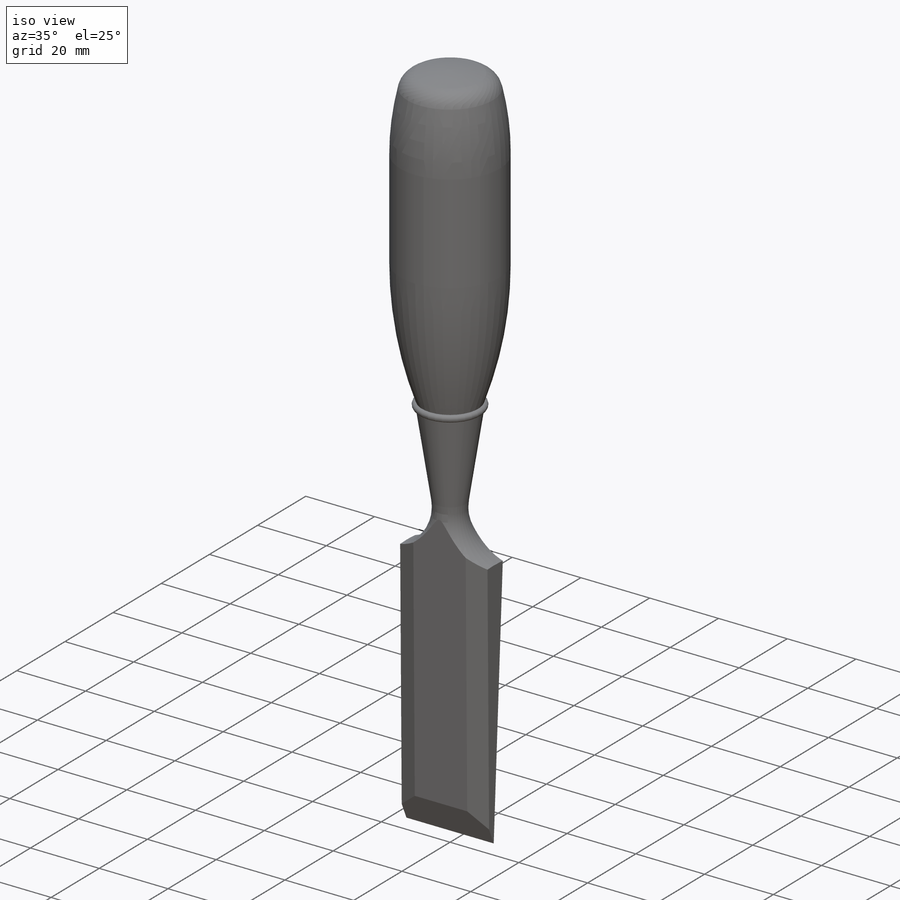
[diagram: iso view]
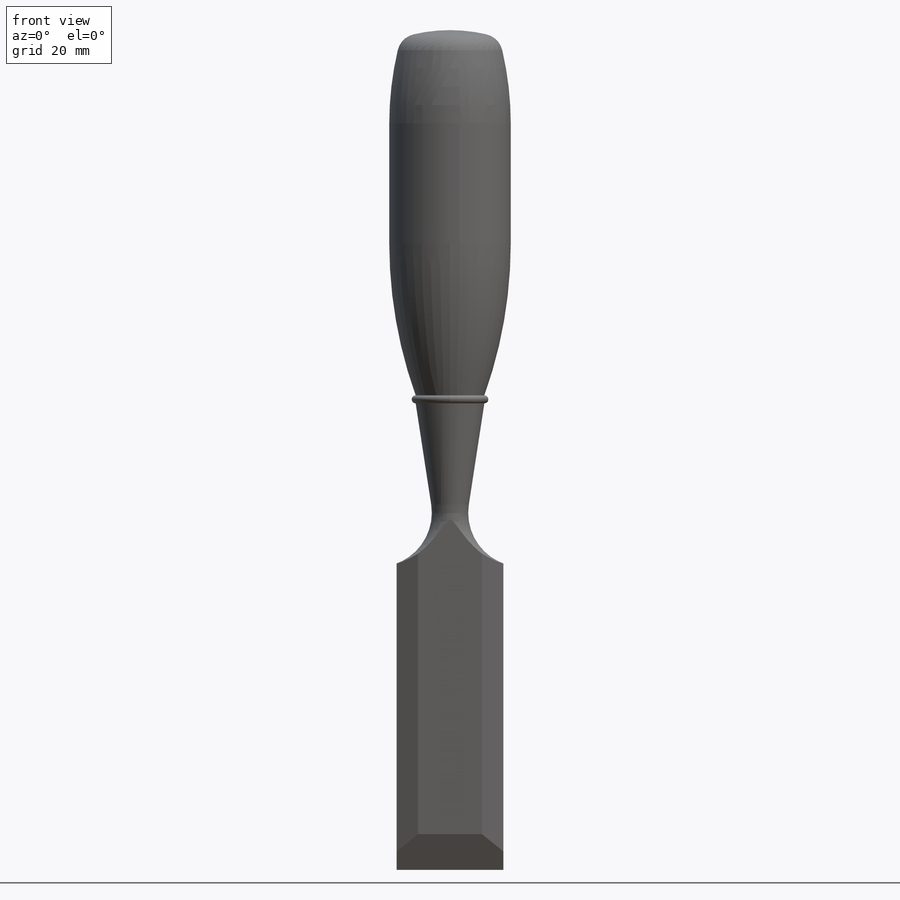
[diagram: front view]
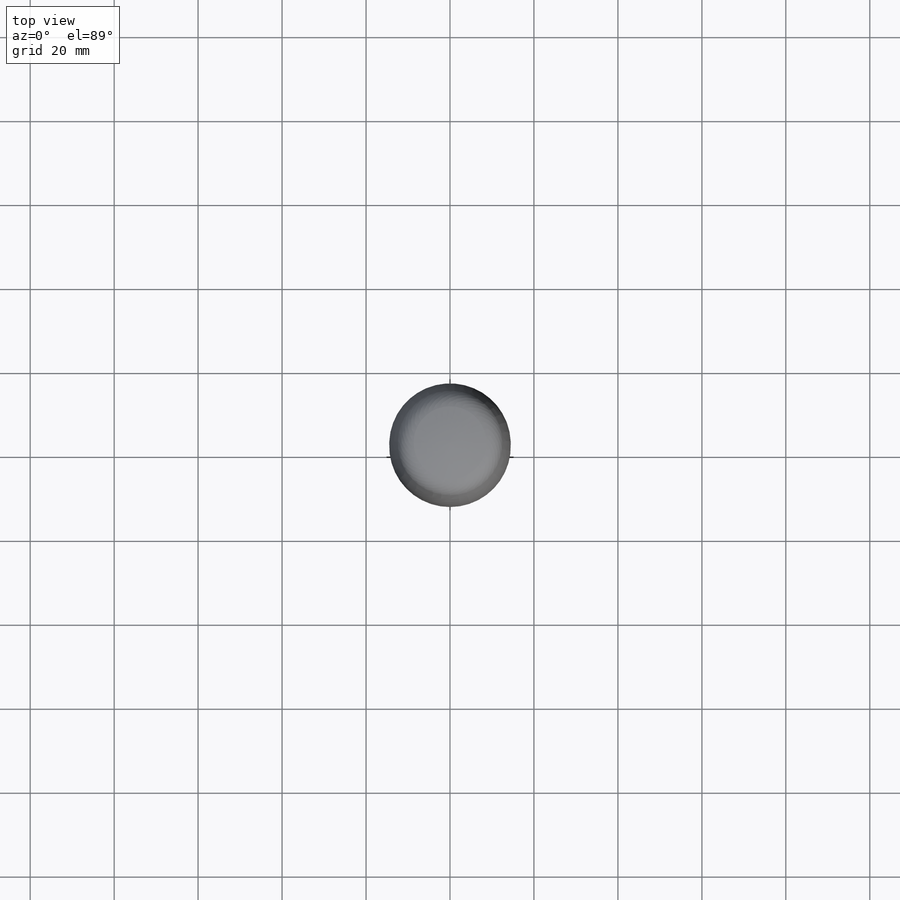
[diagram: top view]
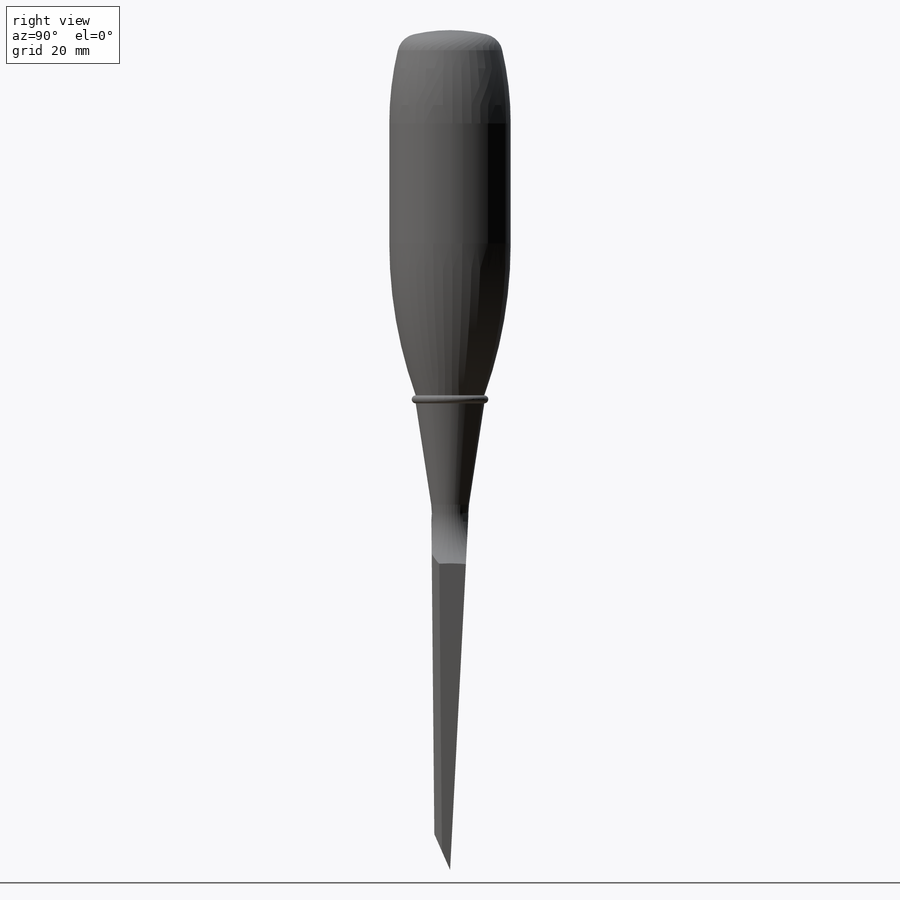
[diagram: right view]
SOLIDWORKS PART (.sldprt)
format: sldprt  version: not decoded by parser v0  size: 260,608 bytes
history: native  units: mm
features: sketch x3, cut_extrude x2, material x1, revolve x1, chamfer x1 (+13 scaffold rows collapsed)
feature tree (21):
  scaffold x13  (default folders/planes/origin — collapsed)
  material  "Material <not specified>"
  sketch  "Sketch1"  dims[c1.D8=38.1mm c1.D9=76.2mm c1.D13=5.08mm c1.D16=0.889mm c1.D1=200.025mm c1.D2=33.02mm c1.D3=73.025mm c1.D4=28.956mm c1.D5=22.225mm c1.D6=50.8mm c1.D7=88.9mm c1.D10=16.383mm c1.D11=8.9916mm c1.D12=113.03mm c2.D3=25.4mm c2.D14=73.025mm c2.D15=1.905mm]
  revolve  "Revolve1"  Angle=360deg
  sketch  "Sketch2"  dims[D1=8.509mm D2=4.191mm D3=63.5mm D4=12.7mm]
  cut_extrude  "Cut-Extrude1"  [1 undecoded]
  sketch  "Sketch3"  dims[D1=25.4mm D2=6.35mm D3=12.7mm]
  cut_extrude  "Cut-Extrude2"  [1 undecoded]
  chamfer  "Chamfer1"  Distance=1.778mm
decode coverage: 5 of 7 modeling features carry decoded parameters
note: 2 parameter values undecoded
note: suppression state not decoded; provenance and decode notes live in map.json
